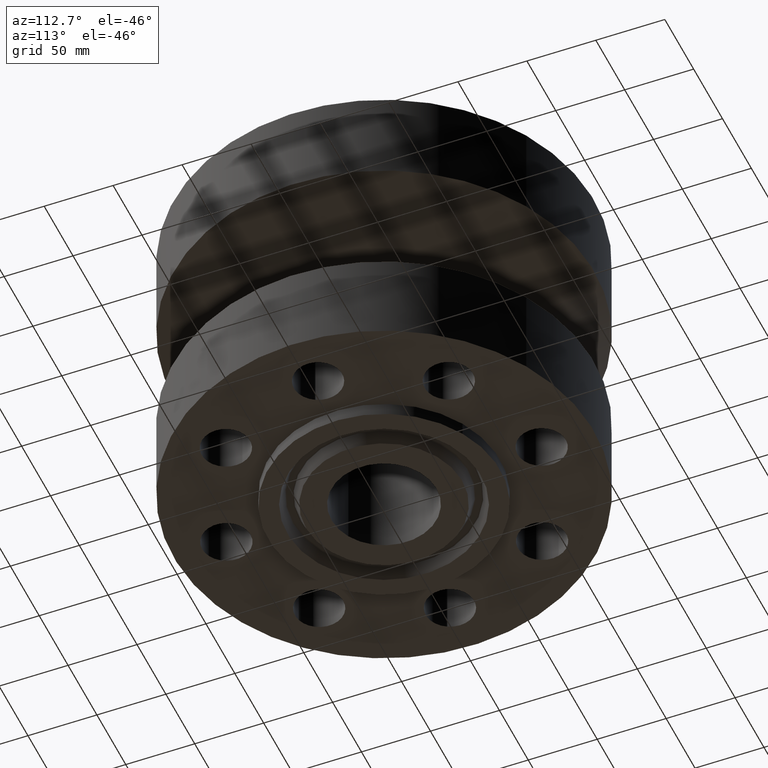
[diagram: clean part render]
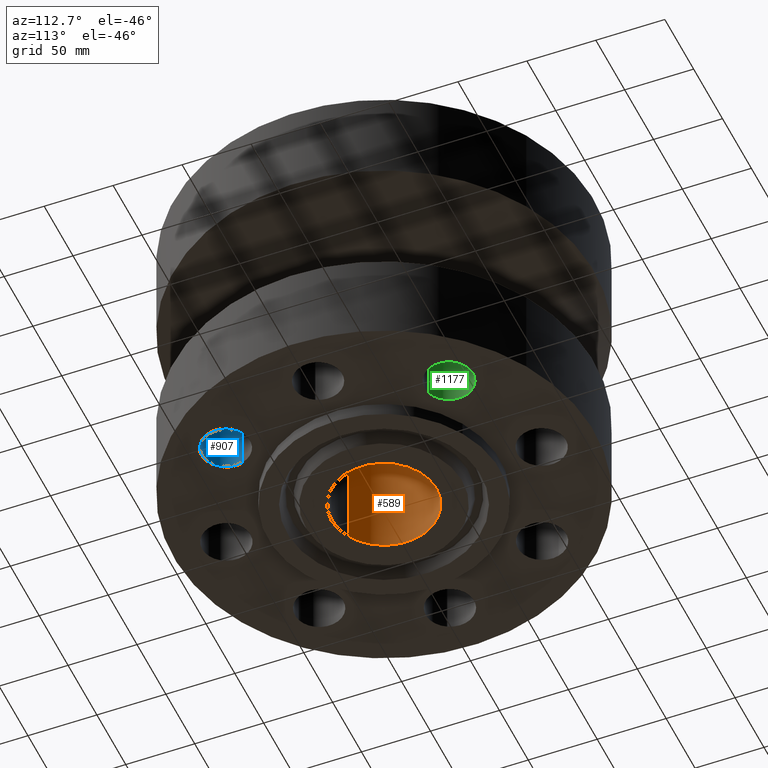
[diagram: same view with three faces highlighted in distinct colors, each labeled with its STEP entity id]
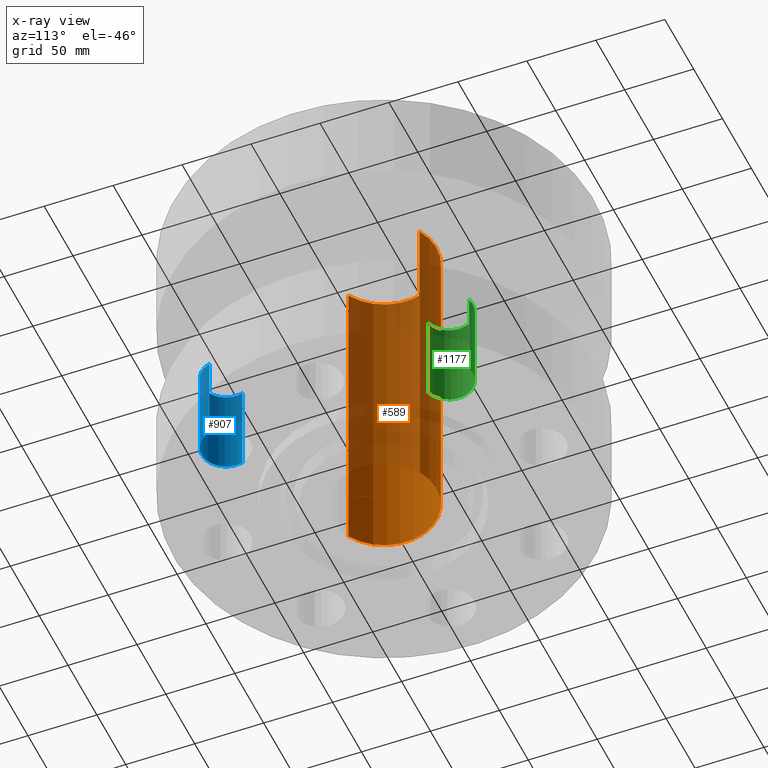
[diagram: x-ray of the same camera — body ghosted, the three highlighted faces saturated]
A machine part, auxiliary view with three faces highlighted in distinct colors.
The next image is the same camera in x-ray (body ghosted, the three faces saturated) — at least one of them is partly hidden behind the body in this view.
Their STEP definitions:

[orange] entity #589 — the highlighted cylindrical surface (partial cylindrical patch) has radius 38.1 mm, axis along (0, 0, -1).
#530=AXIS2_PLACEMENT_3D('Circle Axis2P3D',#528,#529,$) ;
#550=AXIS2_PLACEMENT_3D('Cylinder Axis2P3D',#547,#548,#549) ;
#580=AXIS2_PLACEMENT_3D('Circle Axis2P3D',#578,#579,$) ;
#528=CARTESIAN_POINT('Axis2P3D Location',(0.,0.,8.75000000003)) ;
#532=CARTESIAN_POINT('Vertex',(-0.719138307909,-1.31637384284,8.75000000004)) ;
#534=CARTESIAN_POINT('Vertex',(0.719138307909,1.31637384284,8.75000000004)) ;
#547=CARTESIAN_POINT('Axis2P3D Location',(0.,0.,4.18750000002)) ;
#552=CARTESIAN_POINT('Line Origine',(0.719138307909,1.31637384284,4.18750000002)) ;
#556=CARTESIAN_POINT('Vertex',(0.719138307909,1.31637384284,-0.375000000001)) ;
#563=CARTESIAN_POINT('Vertex',(-0.719138307909,-1.31637384284,-0.375000000001)) ;
#566=CARTESIAN_POINT('Line Origine',(-0.719138307909,-1.31637384284,4.18750000002)) ;
#578=CARTESIAN_POINT('Axis2P3D Location',(0.,0.,-0.375000000002)) ;
#529=DIRECTION('Axis2P3D Direction',(0.,0.,-0.0393700787402)) ;
#548=DIRECTION('Axis2P3D Direction',(0.,0.,-0.0393700787402)) ;
#549=DIRECTION('Axis2P3D XDirection',(-0.0188750212049,-0.0345504945626,0.)) ;
#553=DIRECTION('Vector Direction',(0.,0.,-0.0393700787402)) ;
#567=DIRECTION('Vector Direction',(0.,0.,-0.0393700787402)) ;
#579=DIRECTION('Axis2P3D Direction',(0.,0.,-0.0393700787402)) ;
#554=VECTOR('Line Direction',#553,0.0393700787402) ;
#568=VECTOR('Line Direction',#567,0.0393700787402) ;
#584=ORIENTED_EDGE('',*,*,#536,.F.) ;
#585=ORIENTED_EDGE('',*,*,#570,.T.) ;
#586=ORIENTED_EDGE('',*,*,#582,.T.) ;
#587=ORIENTED_EDGE('',*,*,#558,.F.) ;
#589=ADVANCED_FACE('PartBody',(#588),#551,.F.) ;
#531=CIRCLE('generated circle',#530,1.50000000001) ;
#581=CIRCLE('generated circle',#580,1.50000000001) ;
#551=CYLINDRICAL_SURFACE('generated cylinder',#550,1.50000000001) ;
#536=EDGE_CURVE('',#533,#535,#531,.T.) ;
#558=EDGE_CURVE('',#535,#557,#555,.T.) ;
#570=EDGE_CURVE('',#533,#564,#569,.T.) ;
#582=EDGE_CURVE('',#564,#557,#581,.T.) ;
#583=EDGE_LOOP('',(#584,#585,#586,#587)) ;
#588=FACE_OUTER_BOUND('',#583,.T.) ;
#555=LINE('Line',#552,#554) ;
#569=LINE('Line',#566,#568) ;
#533=VERTEX_POINT('',#532) ;
#535=VERTEX_POINT('',#534) ;
#557=VERTEX_POINT('',#556) ;
#564=VERTEX_POINT('',#563) ;

[blue] entity #907 — the highlighted cylindrical surface (edge-blend (fillet) strip) has radius 17.526 mm, axis along (-0, 0, 1).
#127=AXIS2_PLACEMENT_3D('Circle Axis2P3D',#125,#126,$) ;
#880=AXIS2_PLACEMENT_3D('Cylinder Axis2P3D',#877,#878,#879) ;
#898=AXIS2_PLACEMENT_3D('Circle Axis2P3D',#896,#897,$) ;
#125=CARTESIAN_POINT('Axis2P3D Location',(3.18198051535,-3.18198051535,0.)) ;
#129=CARTESIAN_POINT('Vertex',(3.84406976004,-3.37624279184,0.)) ;
#131=CARTESIAN_POINT('Vertex',(2.51989127066,-2.98771823886,0.)) ;
#877=CARTESIAN_POINT('Axis2P3D Location',(3.18198051535,-3.18198051535,0.00393700787402)) ;
#882=CARTESIAN_POINT('Line Origine',(3.84406976004,-3.37624279184,1.31000000001)) ;
#886=CARTESIAN_POINT('Vertex',(3.84406976004,-3.37624279184,2.62000000001)) ;
#889=CARTESIAN_POINT('Line Origine',(2.51989127066,-2.98771823886,1.31000000001)) ;
#893=CARTESIAN_POINT('Vertex',(2.51989127066,-2.98771823886,2.62000000001)) ;
#896=CARTESIAN_POINT('Axis2P3D Location',(3.18198051535,-3.18198051535,2.62000000001)) ;
#126=DIRECTION('Axis2P3D Direction',(0.,0.,-0.0393700787402)) ;
#878=DIRECTION('Axis2P3D Direction',(-0.,0.,0.0393700787402)) ;
#879=DIRECTION('Axis2P3D XDirection',(0.0377775444876,-0.0110842335096,0.)) ;
#883=DIRECTION('Vector Direction',(0.,0.,0.0393700787402)) ;
#890=DIRECTION('Vector Direction',(0.,0.,0.0393700787402)) ;
#897=DIRECTION('Axis2P3D Direction',(-0.,0.,0.0393700787402)) ;
#884=VECTOR('Line Direction',#883,0.0393700787402) ;
#891=VECTOR('Line Direction',#890,0.0393700787402) ;
#902=ORIENTED_EDGE('',*,*,#888,.T.) ;
#903=ORIENTED_EDGE('',*,*,#133,.T.) ;
#904=ORIENTED_EDGE('',*,*,#895,.F.) ;
#905=ORIENTED_EDGE('',*,*,#900,.F.) ;
#907=ADVANCED_FACE('PartBody',(#906),#881,.F.) ;
#128=CIRCLE('generated circle',#127,0.690000000003) ;
#899=CIRCLE('generated circle',#898,0.690000000003) ;
#881=CYLINDRICAL_SURFACE('generated cylinder',#880,0.690000000003) ;
#133=EDGE_CURVE('',#130,#132,#128,.T.) ;
#888=EDGE_CURVE('',#887,#130,#885,.F.) ;
#895=EDGE_CURVE('',#894,#132,#892,.F.) ;
#900=EDGE_CURVE('',#887,#894,#899,.F.) ;
#901=EDGE_LOOP('',(#902,#903,#904,#905)) ;
#906=FACE_OUTER_BOUND('',#901,.T.) ;
#885=LINE('Line',#882,#884) ;
#892=LINE('Line',#889,#891) ;
#130=VERTEX_POINT('',#129) ;
#132=VERTEX_POINT('',#131) ;
#887=VERTEX_POINT('',#886) ;
#894=VERTEX_POINT('',#893) ;

[green] entity #1177 — the highlighted cylindrical surface (edge-blend (fillet) strip) has radius 17.526 mm, axis along (0, -0, 1).
#244=AXIS2_PLACEMENT_3D('Circle Axis2P3D',#242,#243,$) ;
#1138=AXIS2_PLACEMENT_3D('Cylinder Axis2P3D',#1135,#1136,#1137) ;
#1168=AXIS2_PLACEMENT_3D('Circle Axis2P3D',#1166,#1167,$) ;
#237=CARTESIAN_POINT('Vertex',(3.37624279184,3.84406976004,0.)) ;
#239=CARTESIAN_POINT('Vertex',(2.98771823886,2.51989127066,0.)) ;
#242=CARTESIAN_POINT('Axis2P3D Location',(3.18198051535,3.18198051535,0.)) ;
#1135=CARTESIAN_POINT('Axis2P3D Location',(3.18198051535,3.18198051535,0.00393700787402)) ;
#1140=CARTESIAN_POINT('Line Origine',(3.37624279184,3.84406976004,1.31000000001)) ;
#1144=CARTESIAN_POINT('Vertex',(3.37624279184,3.84406976004,2.62000000001)) ;
#1147=CARTESIAN_POINT('Line Origine',(2.98771823886,2.51989127066,1.31000000001)) ;
#1151=CARTESIAN_POINT('Vertex',(2.98771823886,2.51989127066,2.62000000001)) ;
#1166=CARTESIAN_POINT('Axis2P3D Location',(3.18198051535,3.18198051535,2.62000000001)) ;
#243=DIRECTION('Axis2P3D Direction',(0.,0.,-0.0393700787402)) ;
#1136=DIRECTION('Axis2P3D Direction',(0.,-0.,0.0393700787402)) ;
#1137=DIRECTION('Axis2P3D XDirection',(0.0110842335096,0.0377775444876,0.)) ;
#1141=DIRECTION('Vector Direction',(0.,0.,0.0393700787402)) ;
#1148=DIRECTION('Vector Direction',(0.,0.,0.0393700787402)) ;
#1167=DIRECTION('Axis2P3D Direction',(0.,-0.,0.0393700787402)) ;
#1142=VECTOR('Line Direction',#1141,0.0393700787402) ;
#1149=VECTOR('Line Direction',#1148,0.0393700787402) ;
#1172=ORIENTED_EDGE('',*,*,#1153,.T.) ;
#1173=ORIENTED_EDGE('',*,*,#246,.T.) ;
#1174=ORIENTED_EDGE('',*,*,#1146,.F.) ;
#1175=ORIENTED_EDGE('',*,*,#1170,.F.) ;
#1177=ADVANCED_FACE('PartBody',(#1176),#1139,.F.) ;
#245=CIRCLE('generated circle',#244,0.690000000003) ;
#1169=CIRCLE('generated circle',#1168,0.690000000003) ;
#1139=CYLINDRICAL_SURFACE('generated cylinder',#1138,0.690000000003) ;
#246=EDGE_CURVE('',#240,#238,#245,.T.) ;
#1146=EDGE_CURVE('',#1145,#238,#1143,.F.) ;
#1153=EDGE_CURVE('',#1152,#240,#1150,.F.) ;
#1170=EDGE_CURVE('',#1152,#1145,#1169,.F.) ;
#1171=EDGE_LOOP('',(#1172,#1173,#1174,#1175)) ;
#1176=FACE_OUTER_BOUND('',#1171,.T.) ;
#1143=LINE('Line',#1140,#1142) ;
#1150=LINE('Line',#1147,#1149) ;
#238=VERTEX_POINT('',#237) ;
#240=VERTEX_POINT('',#239) ;
#1145=VERTEX_POINT('',#1144) ;
#1152=VERTEX_POINT('',#1151) ;